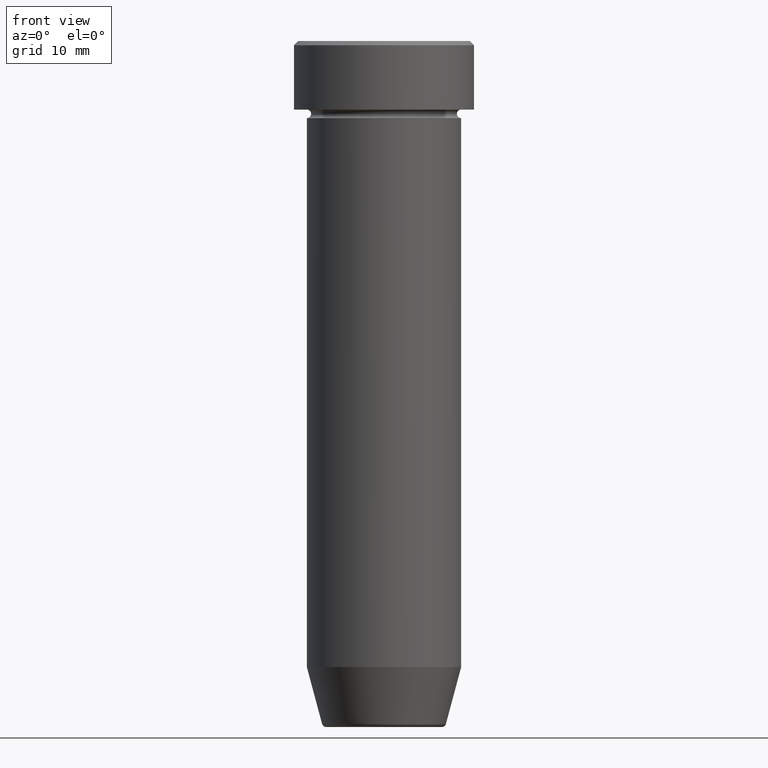
[diagram: clean part render]
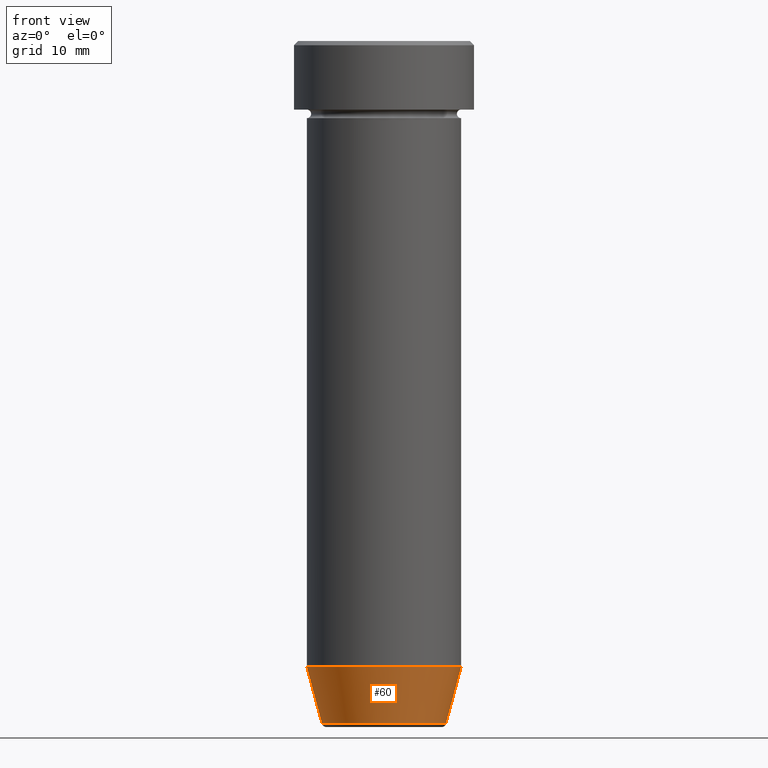
[diagram: same view with one face highlighted and labeled with its STEP entity id]
A machine part, front view. The second image highlights one B-rep face of the part: STEP entity #60.
In plain terms, the highlighted conical surface has half-angle 15 deg.
Its self-contained STEP definition (entity closure, byte-faithful):
#2 = VERTEX_POINT ( 'NONE', #560 ) ;
#12 = DIRECTION ( 'NONE',  ( 1.000000000000000000, 0.000000000000000000, 0.000000000000000000 ) ) ;
#23 = EDGE_LOOP ( 'NONE', ( #148, #463, #518, #497 ) ) ;
#25 = VECTOR ( 'NONE', #564, 1000.000000000000114 ) ;
#32 = VERTEX_POINT ( 'NONE', #577 ) ;
#60 = ADVANCED_FACE ( 'NONE', ( #164 ), #413, .T. ) ;
#73 = DIRECTION ( 'NONE',  ( 1.000000000000000000, 0.000000000000000000, 0.000000000000000000 ) ) ;
#95 = VERTEX_POINT ( 'NONE', #445 ) ;
#125 = DIRECTION ( 'NONE',  ( -1.000000000000000000, 0.000000000000000000, 0.000000000000000000 ) ) ;
#135 = EDGE_CURVE ( 'NONE', #32, #408, #212, .T. ) ;
#148 = ORIENTED_EDGE ( 'NONE', *, *, #409, .F. ) ;
#161 = DIRECTION ( 'NONE',  ( -0.000000000000000000, -0.000000000000000000, 1.000000000000000000 ) ) ;
#164 = FACE_OUTER_BOUND ( 'NONE', #23, .T. ) ;
#203 = LINE ( 'NONE', #490, #25 ) ;
#204 = VECTOR ( 'NONE', #356, 1000.000000000000114 ) ;
#212 = CIRCLE ( 'NONE', #557, 9.000000000000000000 ) ;
#226 = CARTESIAN_POINT ( 'NONE',  ( 9.000000000000000000, 0.000000000000000000, -73.00000000000000000 ) ) ;
#240 = AXIS2_PLACEMENT_3D ( 'NONE', #579, #452, #125 ) ;
#306 = EDGE_CURVE ( 'NONE', #2, #408, #203, .T. ) ;
#318 = LINE ( 'NONE', #407, #204 ) ;
#353 = DIRECTION ( 'NONE',  ( -0.000000000000000000, -0.000000000000000000, 1.000000000000000000 ) ) ;
#356 = DIRECTION ( 'NONE',  ( -0.2588190451025210725, 3.169619151431769255E-17, 0.9659258262890680902 ) ) ;
#407 = CARTESIAN_POINT ( 'NONE',  ( -7.124355652982136355, 8.724819346411924116E-16, -80.00000000000000000 ) ) ;
#408 = VERTEX_POINT ( 'NONE', #226 ) ;
#409 = EDGE_CURVE ( 'NONE', #95, #32, #318, .T. ) ;
#411 = EDGE_CURVE ( 'NONE', #95, #2, #493, .T. ) ;
#413 = CONICAL_SURFACE ( 'NONE', #447, 7.124355652982136355, 0.2617993877991497964 ) ;
#445 = CARTESIAN_POINT ( 'NONE',  ( -7.223655072137189492, 9.934123627281765110E-16, -79.62940952255127058 ) ) ;
#447 = AXIS2_PLACEMENT_3D ( 'NONE', #489, #161, #73 ) ;
#452 = DIRECTION ( 'NONE',  ( -0.000000000000000000, -0.000000000000000000, 1.000000000000000000 ) ) ;
#463 = ORIENTED_EDGE ( 'NONE', *, *, #411, .T. ) ;
#482 = CARTESIAN_POINT ( 'NONE',  ( 0.000000000000000000, 0.000000000000000000, -73.00000000000000000 ) ) ;
#489 = CARTESIAN_POINT ( 'NONE',  ( 0.000000000000000000, 0.000000000000000000, -80.00000000000000000 ) ) ;
#490 = CARTESIAN_POINT ( 'NONE',  ( 7.124355652982136355, 0.000000000000000000, -80.00000000000000000 ) ) ;
#493 = CIRCLE ( 'NONE', #240, 7.223655072137189492 ) ;
#497 = ORIENTED_EDGE ( 'NONE', *, *, #135, .F. ) ;
#518 = ORIENTED_EDGE ( 'NONE', *, *, #306, .T. ) ;
#557 = AXIS2_PLACEMENT_3D ( 'NONE', #482, #353, #12 ) ;
#560 = CARTESIAN_POINT ( 'NONE',  ( 7.223655072137189492, 0.000000000000000000, -79.62940952255127058 ) ) ;
#564 = DIRECTION ( 'NONE',  ( 0.2588190451025210725, 0.000000000000000000, 0.9659258262890680902 ) ) ;
#577 = CARTESIAN_POINT ( 'NONE',  ( -9.000000000000000000, 1.102182119232617714E-15, -73.00000000000000000 ) ) ;
#579 = CARTESIAN_POINT ( 'NONE',  ( 0.000000000000000000, 0.000000000000000000, -79.62940952255127058 ) ) ;